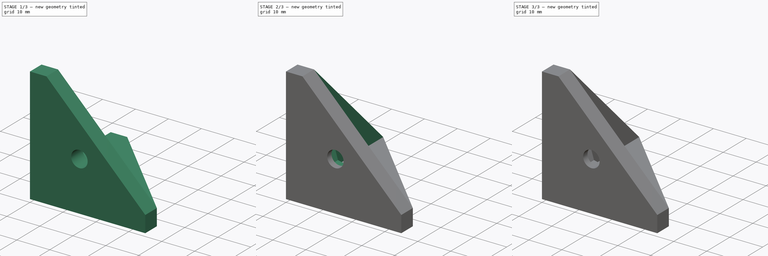
[diagram: build sequence overview — one tinted view per stage of 3, left to right]
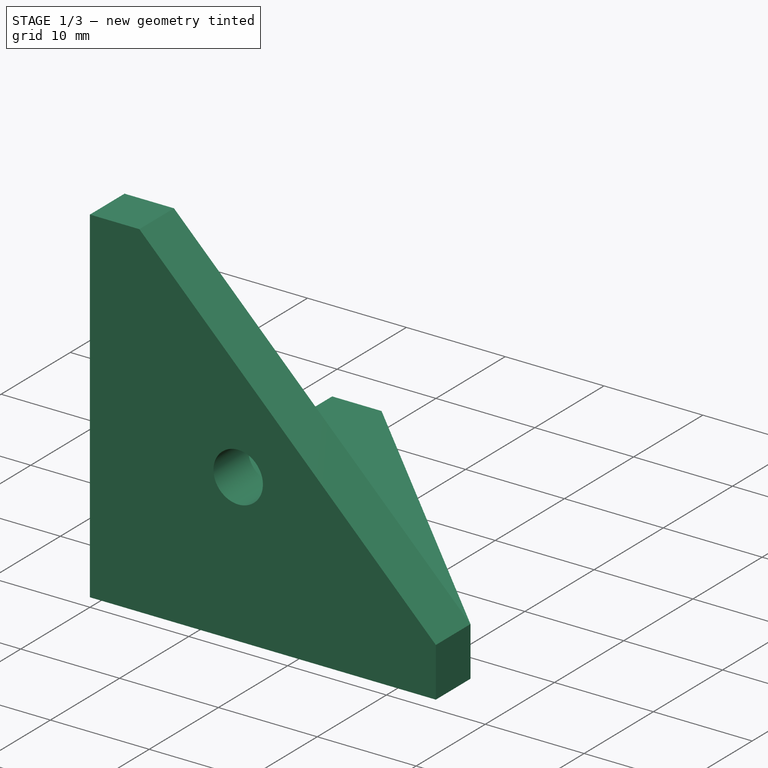
[diagram: stage 1 of 3 — iso view after this stage's code; geometry added in this stage tinted green]
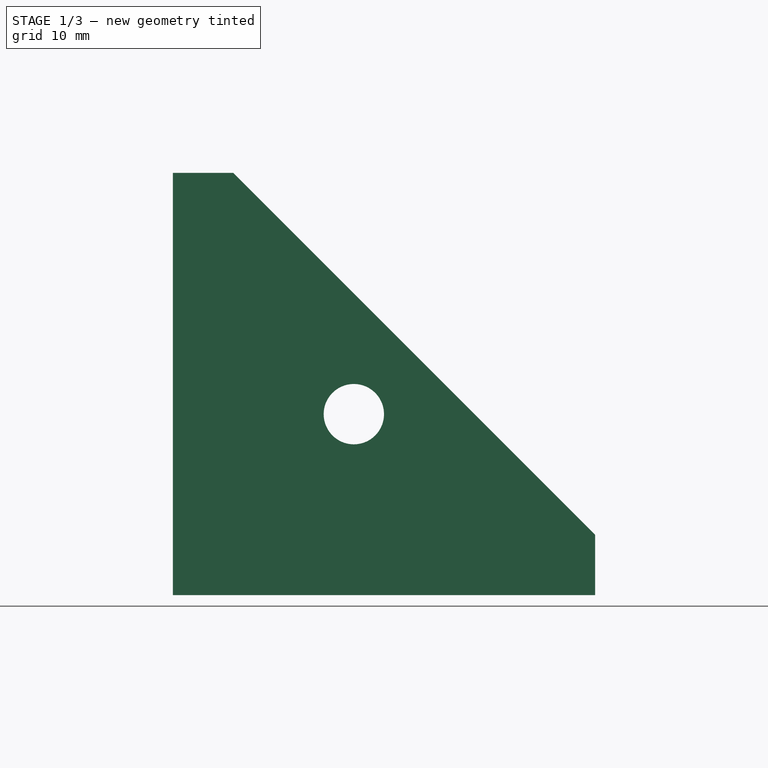
[diagram: stage 1 of 3 — front view after this stage's code; geometry added in this stage tinted green]
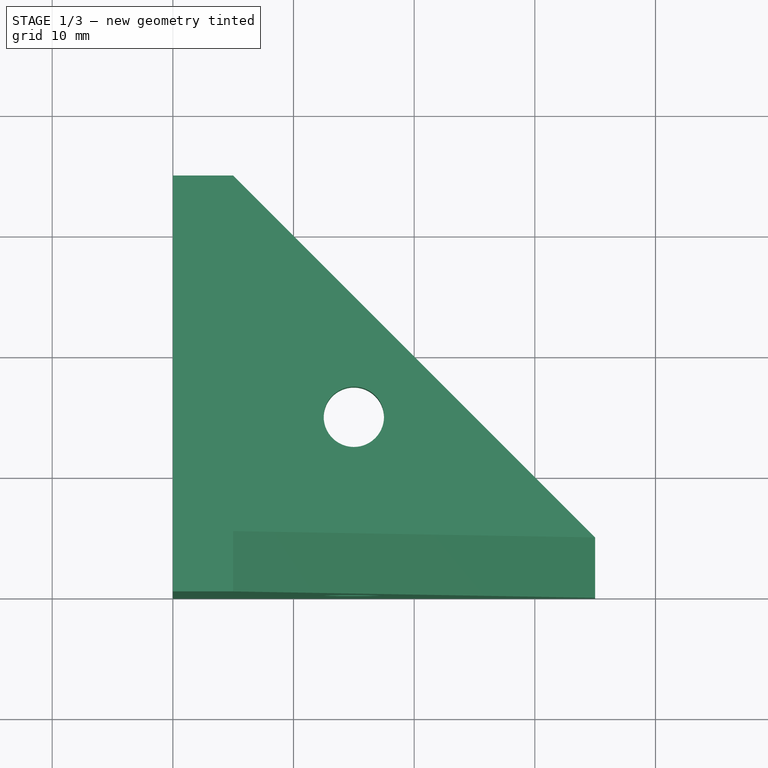
[diagram: stage 1 of 3 — top view after this stage's code; geometry added in this stage tinted green]
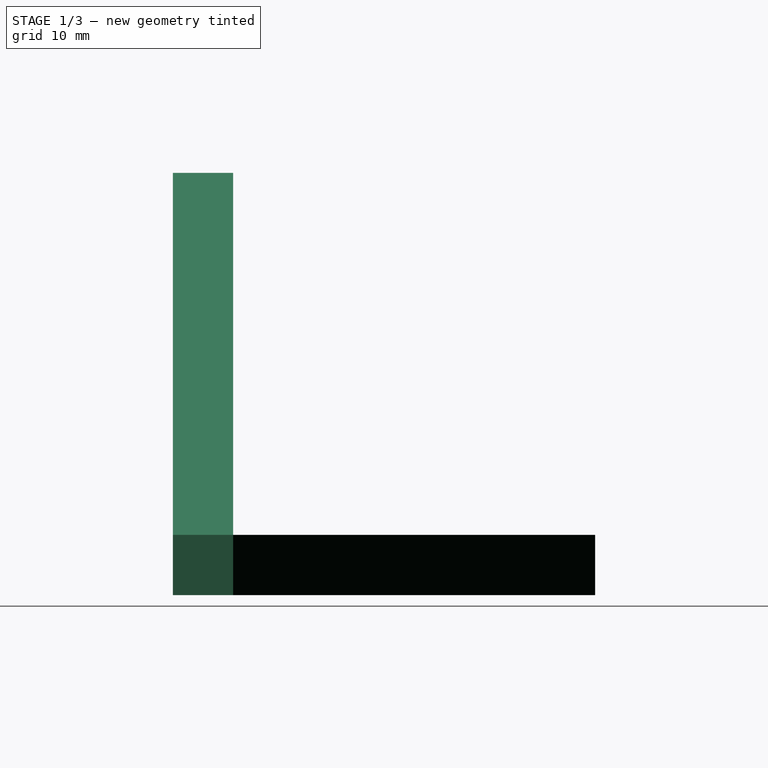
[diagram: stage 1 of 3 — right view after this stage's code; geometry added in this stage tinted green]
FCSTD DOCUMENT  (FreeCAD 0.19R24267 +148 (Git))
Label: Try_Square
License: All rights reserved
LicenseURL: http://en.wikipedia.org/wiki/All_rights_reserved
objects: Sketcher::SketchObject×6, PartDesign::Pad×3, PartDesign::Pocket×3, PartDesign::Body×1
note: 19 computed .brp shape members not serialized (recipe doc carries the construction recipe); baked Part::Feature solids carry a one-line shape summary decoded from their .brp

FEATURE [Sketcher::SketchObject] Sketch
  FullyConstrained = true
  MapMode = 5
  Support = -> [XY_Plane]
  sketch-geometry (6):
    g0: LineSegment StartX=0 StartY=0 StartZ=0 EndX=0 EndY=35 EndZ=0
    g1: LineSegment StartX=0 StartY=35 StartZ=0 EndX=5 EndY=35 EndZ=0
    g2: LineSegment StartX=5 StartY=35 StartZ=0 EndX=35 EndY=5 EndZ=0
    g3: LineSegment StartX=35 StartY=5 StartZ=0 EndX=35 EndY=0 EndZ=0
    g4: LineSegment StartX=35 StartY=0 StartZ=0 EndX=0 EndY=0 EndZ=0
    g5: Circle CenterX=15 CenterY=15 CenterZ=0 NormalX=0 NormalY=0 NormalZ=1 AngleXU=0 Radius=2.5
  constraints (17):
    c: Coincident(g-1,g0)
    c: PointOnObject(g0,g-2)
    c: Coincident(g0,g1)
    c: Horizontal(g1)
    c: Coincident(g1,g2)
    c: Coincident(g2,g3)
    c: PointOnObject(g3,g-1)
    c: Vertical(g3)
    c: Coincident(g3,g4)
    c: Coincident(g4,g0)
    c: Equal(g4,g0)
    c: Equal(g3,g1)
    c: Distance(g0) = 35
    c: DistanceX(g1,g1) = 5
    c: Diameter(g5) = 5
    c: DistanceY(g0,g5) = 15
    c: DistanceX(g0,g5) = 15
FEATURE [PartDesign::Pad] Pad  label="BottomBody"
  Direction = (1,1,1)
  Length = 5
  Length2 = 100
  Profile = -> Sketch
  Refine = true
  Type = 0
FEATURE [Sketcher::SketchObject] Sketch001
  FullyConstrained = true
  MapMode = 5
  Placement = pos=(0,0,0) rot=(1,0,0;1.5708rad)
  Support = -> [XZ_Plane]
  sketch-geometry (6):
    g0: LineSegment StartX=0 StartY=0 StartZ=0 EndX=0 EndY=35 EndZ=0
    g1: LineSegment StartX=0 StartY=35 StartZ=0 EndX=5 EndY=35 EndZ=0
    g2: LineSegment StartX=5 StartY=35 StartZ=0 EndX=35 EndY=5 EndZ=0
    g3: LineSegment StartX=35 StartY=5 StartZ=0 EndX=35 EndY=0 EndZ=0
    g4: LineSegment StartX=35 StartY=0 StartZ=0 EndX=0 EndY=0 EndZ=0
    g5: Circle CenterX=15 CenterY=15 CenterZ=0 NormalX=0 NormalY=0 NormalZ=1 AngleXU=0 Radius=2.5
  constraints (17):
    c: Coincident(g-1,g0)
    c: PointOnObject(g0,g-2)
    c: Coincident(g0,g1)
    c: Horizontal(g1)
    c: Coincident(g1,g2)
    c: Coincident(g2,g3)
    c: PointOnObject(g3,g-1)
    c: Vertical(g3)
    c: Coincident(g3,g4)
    c: Coincident(g4,g0)
    c: Equal(g0,g4)
    c: Equal(g1,g3)
    c: Distance(g4) = 35
    c: Distance(g3) = 5
    c: DistanceY(g0,g5) = 15
    c: DistanceX(g0,g5) = 15
    c: Diameter(g5) = 5
FEATURE [PartDesign::Pad] Pad001  label="LeftBody"
  BaseFeature = -> Pad
  Direction = (1,1,1)
  Length = 5
  Length2 = 100
  Profile = -> Sketch001
  Refine = true
  Reversed = true
  Type = 0
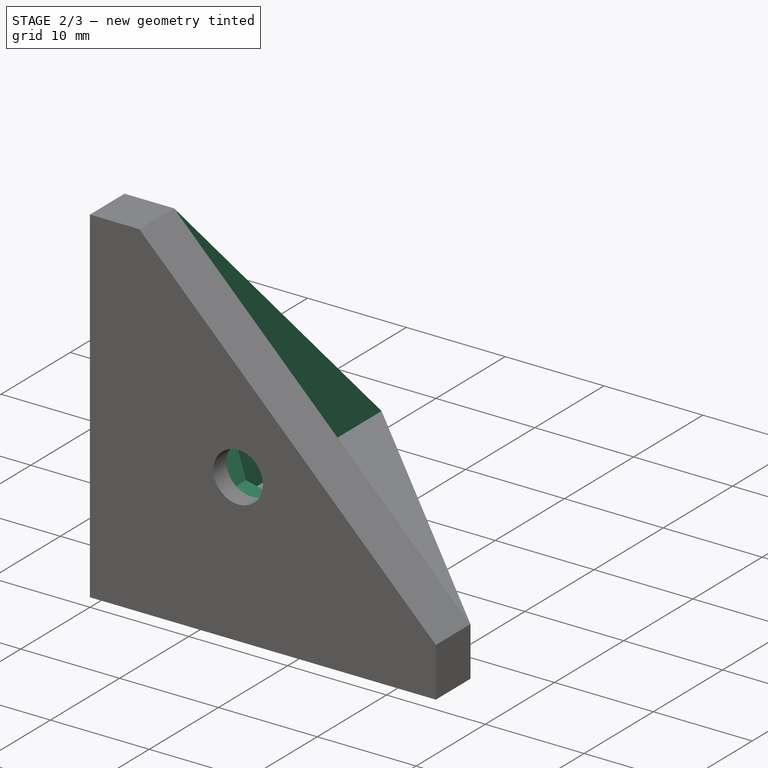
[diagram: stage 2 of 3 — iso view after this stage's code; geometry added in this stage tinted green]
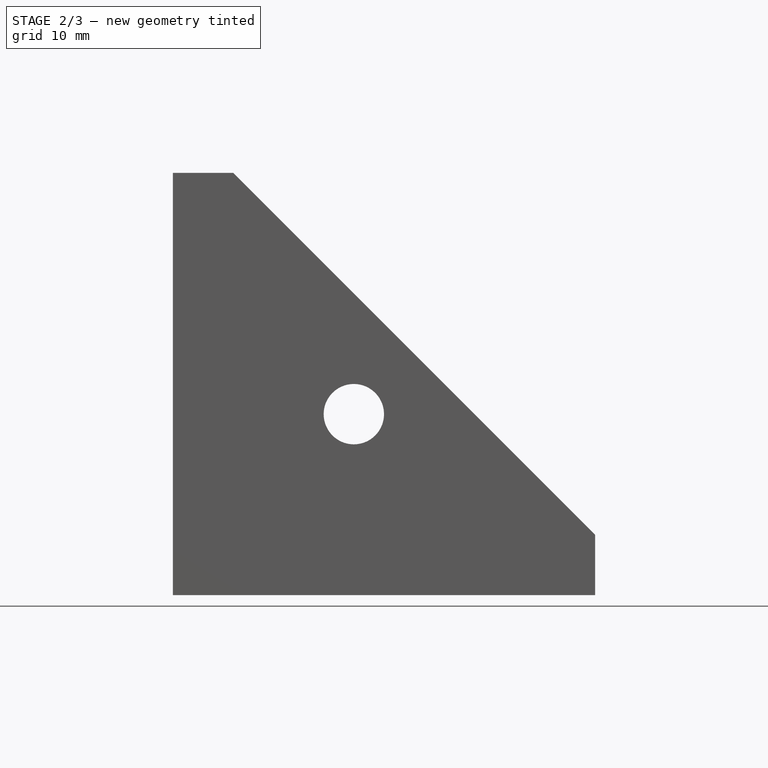
[diagram: stage 2 of 3 — front view after this stage's code; geometry added in this stage tinted green]
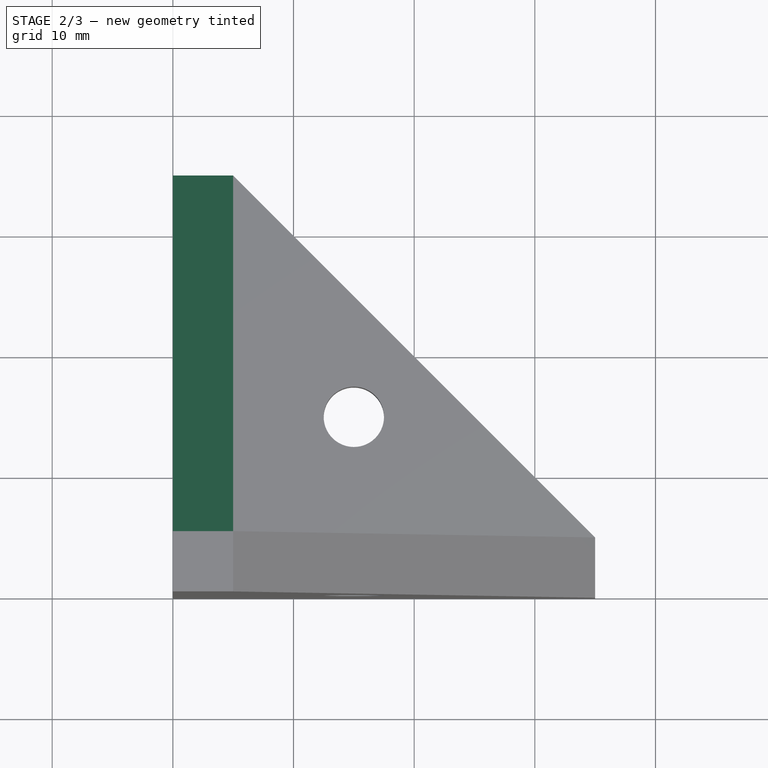
[diagram: stage 2 of 3 — top view after this stage's code; geometry added in this stage tinted green]
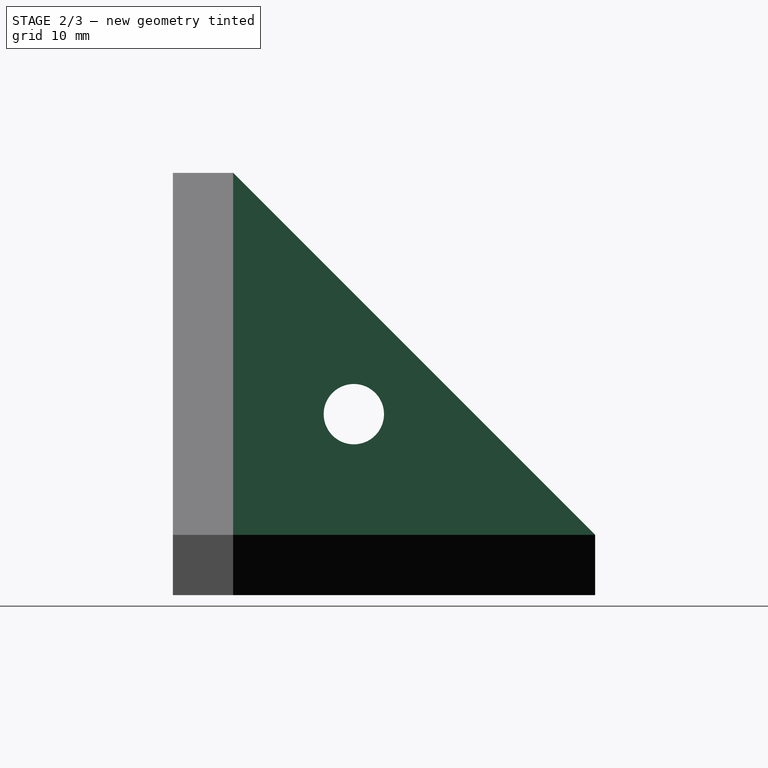
[diagram: stage 2 of 3 — right view after this stage's code; geometry added in this stage tinted green]
FEATURE [Sketcher::SketchObject] Sketch002
  FullyConstrained = true
  MapMode = 5
  Placement = pos=(0,0,0) rot=(0.57735,0.57735,0.57735;2.0944rad)
  Support = -> [YZ_Plane]
  sketch-geometry (6):
    g0: LineSegment StartX=0 StartY=0 StartZ=0 EndX=0 EndY=35 EndZ=0
    g1: LineSegment StartX=0 StartY=35 StartZ=0 EndX=5 EndY=35 EndZ=0
    g2: LineSegment StartX=5 StartY=35 StartZ=0 EndX=35 EndY=5 EndZ=0
    g3: LineSegment StartX=35 StartY=5 StartZ=0 EndX=35 EndY=0 EndZ=0
    g4: LineSegment StartX=35 StartY=0 StartZ=0 EndX=0 EndY=0 EndZ=0
    g5: Circle CenterX=15 CenterY=15 CenterZ=0 NormalX=0 NormalY=0 NormalZ=1 AngleXU=0 Radius=2.5
  constraints (17):
    c: Coincident(g-1,g0)
    c: PointOnObject(g0,g-2)
    c: Coincident(g0,g1)
    c: Horizontal(g1)
    c: Coincident(g1,g2)
    c: Coincident(g2,g3)
    c: PointOnObject(g3,g-1)
    c: Vertical(g3)
    c: Coincident(g3,g4)
    c: Coincident(g4,g0)
    c: Equal(g4,g0)
    c: Equal(g3,g1)
    c: Distance(g4) = 35
    c: Distance(g3) = 5
    c: Diameter(g5) = 5
    c: DistanceY(g0,g5) = 15
    c: DistanceX(g0,g5) = 15
FEATURE [PartDesign::Pad] Pad002  label="FrontBody"
  BaseFeature = -> Pad001
  Direction = (1,1,1)
  Length = 5
  Length2 = 100
  Profile = -> Sketch002
  Refine = true
  Type = 0
FEATURE [Sketcher::SketchObject] Sketch003
  ExternalGeometry = -> [Pad002]
  FullyConstrained = false
  MapMode = 5
  Placement = pos=(0,5,-1.1e-15) rot=(0,0.707107,0.707107;3.14159rad)
  Support = -> [Pad002]
  sketch-geometry (8):
    g0: LineSegment StartX=-13.8284 StartY=18.8075 StartZ=0 EndX=-17.7116 EndY=17.9184 EndZ=0
    g1: LineSegment StartX=-17.7116 StartY=17.9184 StartZ=0 EndX=-18.8832 EndY=14.1109 EndZ=0
    g2: LineSegment StartX=-18.8832 StartY=14.1109 StartZ=0 EndX=-16.1716 EndY=11.1925 EndZ=0
    g3: LineSegment StartX=-16.1716 StartY=11.1925 StartZ=0 EndX=-12.2884 EndY=12.0816 EndZ=0
    g4: LineSegment StartX=-12.2884 StartY=12.0816 StartZ=0 EndX=-11.1168 EndY=15.8891 EndZ=0
    g5: LineSegment StartX=-11.1168 StartY=15.8891 StartZ=0 EndX=-13.8284 EndY=18.8075 EndZ=0
    g6: Circle CenterX=-15 CenterY=15 CenterZ=0 NormalX=0 NormalY=0 NormalZ=1 AngleXU=0 Radius=3.98372
    g7: LineSegment StartX=-17.7116 StartY=17.9184 StartZ=0 EndX=-12.2884 EndY=12.0816 EndZ=0
  constraints (17):
    c: Coincident(g0,g1)
    c: Coincident(g1,g2)
    c: Coincident(g2,g3)
    c: Coincident(g3,g4)
    c: Coincident(g4,g5)
    c: Coincident(g5,g0)
    c: Equal(g0, g1-g5) x5
    c: PointOnObject(g0,g6)
    c: PointOnObject(g1,g6)
    c: PointOnObject(g2,g6)
    c: PointOnObject(g3,g6)
    c: PointOnObject(g4,g6)
    c: PointOnObject(g5,g6)
    c: Coincident(g6,g-3)
    c: Coincident(g7,g0)
    c: Coincident(g7,g3)
    c: Distance(g4,g2) = 6.9
FEATURE [PartDesign::Pocket] Pocket  label="PocketForFront_Nuts"
  BaseFeature = -> Pad002
  Length = 3.1
  Length2 = 100
  Profile = -> Sketch003
  Refine = true
  Type = 0
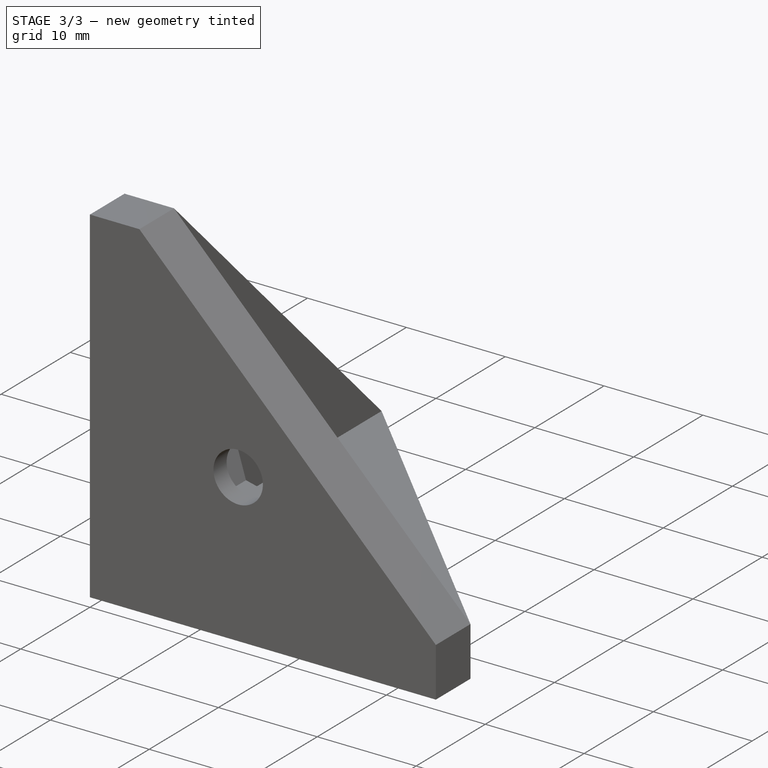
[diagram: stage 3 of 3 — iso view after this stage's code; geometry added in this stage tinted green]
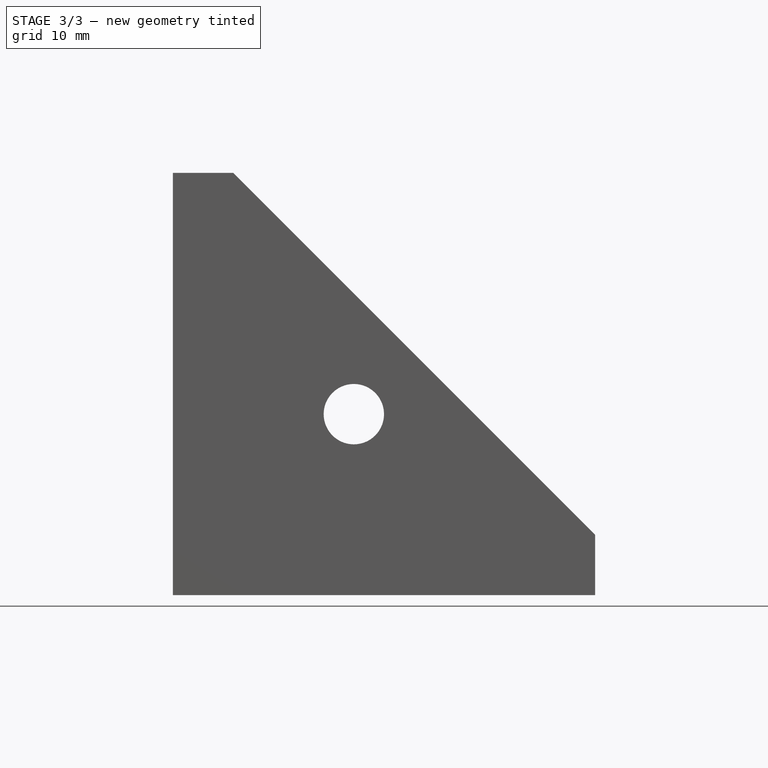
[diagram: stage 3 of 3 — front view after this stage's code; geometry added in this stage tinted green]
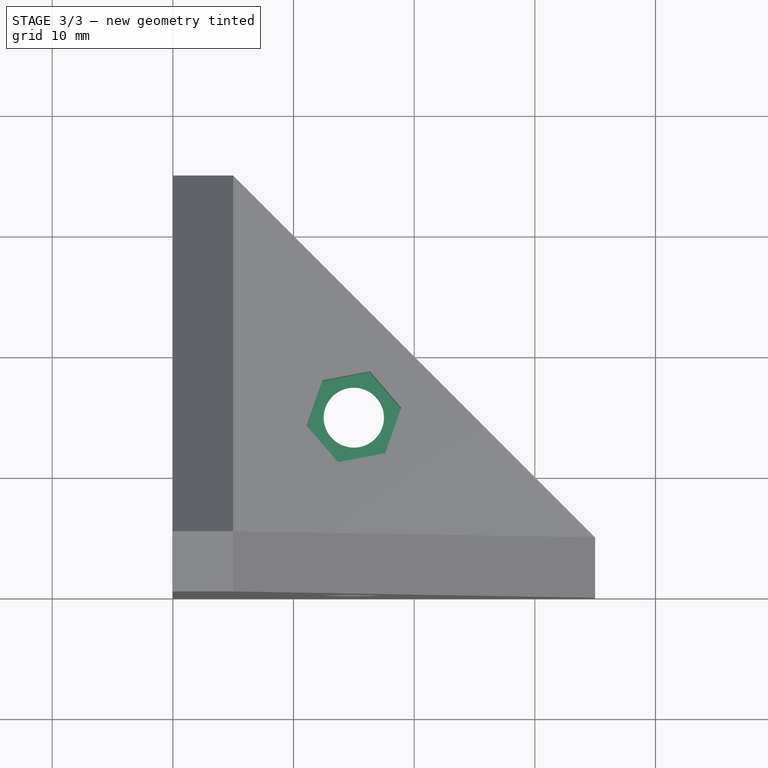
[diagram: stage 3 of 3 — top view after this stage's code; geometry added in this stage tinted green]
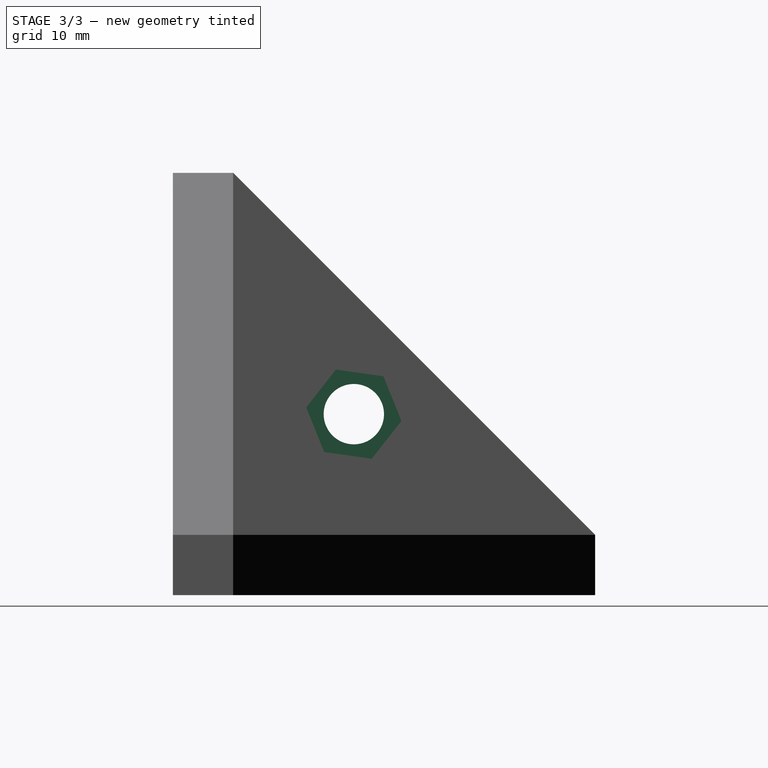
[diagram: stage 3 of 3 — right view after this stage's code; geometry added in this stage tinted green]
FEATURE [Sketcher::SketchObject] Sketch004
  ExternalGeometry = -> [Pocket]
  FullyConstrained = false
  MapMode = 5
  Placement = pos=(0,0,5) rot=(0,0,1;0rad)
  Support = -> [Pocket]
  sketch-geometry (7):
    g0: LineSegment StartX=16.3213 StartY=18.7582 StartZ=0 EndX=12.4059 EndY=18.0234 EndZ=0
    g1: LineSegment StartX=12.4059 StartY=18.0234 StartZ=0 EndX=11.0846 EndY=14.2652 EndZ=0
    g2: LineSegment StartX=11.0846 StartY=14.2652 StartZ=0 EndX=13.6787 EndY=11.2418 EndZ=0
    g3: LineSegment StartX=13.6787 StartY=11.2418 StartZ=0 EndX=17.5941 EndY=11.9766 EndZ=0
    g4: LineSegment StartX=17.5941 StartY=11.9766 StartZ=0 EndX=18.9154 EndY=15.7348 EndZ=0
    g5: LineSegment StartX=18.9154 StartY=15.7348 StartZ=0 EndX=16.3213 EndY=18.7582 EndZ=0
    g6: Circle CenterX=15 CenterY=15 CenterZ=0 NormalX=0 NormalY=0 NormalZ=1 AngleXU=0 Radius=3.98372
  constraints (15):
    c: Coincident(g0,g1)
    c: Coincident(g1,g2)
    c: Coincident(g2,g3)
    c: Coincident(g3,g4)
    c: Coincident(g4,g5)
    c: Coincident(g5,g0)
    c: Equal(g0, g1-g5) x5
    c: PointOnObject(g0,g6)
    c: PointOnObject(g1,g6)
    c: PointOnObject(g2,g6)
    c: PointOnObject(g3,g6)
    c: PointOnObject(g4,g6)
    c: PointOnObject(g5,g6)
    c: Coincident(g6,g-3)
    c: Distance(g4,g2) = 6.9
FEATURE [PartDesign::Pocket] Pocket001  label="PocketForBottom_Nuts"
  BaseFeature = -> Pocket
  Length = 3.1
  Length2 = 100
  Profile = -> Sketch004
  Refine = true
  Type = 0
FEATURE [Sketcher::SketchObject] Sketch005
  ExternalGeometry = -> [Pocket001]
  FullyConstrained = false
  MapMode = 5
  Placement = pos=(5,-1.1e-15,1.1e-15) rot=(0.57735,0.57735,0.57735;2.0944rad)
  Support = -> [Pocket001]
  sketch-geometry (7):
    g0: LineSegment StartX=18.9445 StartY=14.4421 StartZ=0 EndX=17.4554 EndY=18.137 EndZ=0
    g1: LineSegment StartX=17.4554 StartY=18.137 StartZ=0 EndX=13.511 EndY=18.695 EndZ=0
    g2: LineSegment StartX=13.511 StartY=18.695 StartZ=0 EndX=11.0555 EndY=15.5579 EndZ=0
    g3: LineSegment StartX=11.0555 StartY=15.5579 StartZ=0 EndX=12.5446 EndY=11.863 EndZ=0
    g4: LineSegment StartX=12.5446 StartY=11.863 StartZ=0 EndX=16.489 EndY=11.305 EndZ=0
    g5: LineSegment StartX=16.489 StartY=11.305 StartZ=0 EndX=18.9445 EndY=14.4421 EndZ=0
    g6: Circle CenterX=15 CenterY=15 CenterZ=0 NormalX=0 NormalY=0 NormalZ=1 AngleXU=0 Radius=3.98372
  constraints (15):
    c: Coincident(g0,g1)
    c: Coincident(g1,g2)
    c: Coincident(g2,g3)
    c: Coincident(g3,g4)
    c: Coincident(g4,g5)
    c: Coincident(g5,g0)
    c: Equal(g0, g1-g5) x5
    c: PointOnObject(g0,g6)
    c: PointOnObject(g1,g6)
    c: PointOnObject(g2,g6)
    c: PointOnObject(g3,g6)
    c: PointOnObject(g4,g6)
    c: PointOnObject(g5,g6)
    c: Coincident(g6,g-3)
    c: Distance(g4,g2) = 6.9
FEATURE [PartDesign::Pocket] Pocket002  label="PocketForLeft_Nuts"
  BaseFeature = -> Pocket001
  Length = 3.1
  Length2 = 100
  Profile = -> Sketch005
  Refine = true
  Type = 0
FEATURE [PartDesign::Body] Body
  Group = -> [Sketch,Pad,Sketch001,Pad001,Sketch002,Pad002,Sketch003,Pocket,Sketch004,Pocket001,Sketch005,Pocket002]
  Origin = -> Origin
  Tip = -> Pocket002
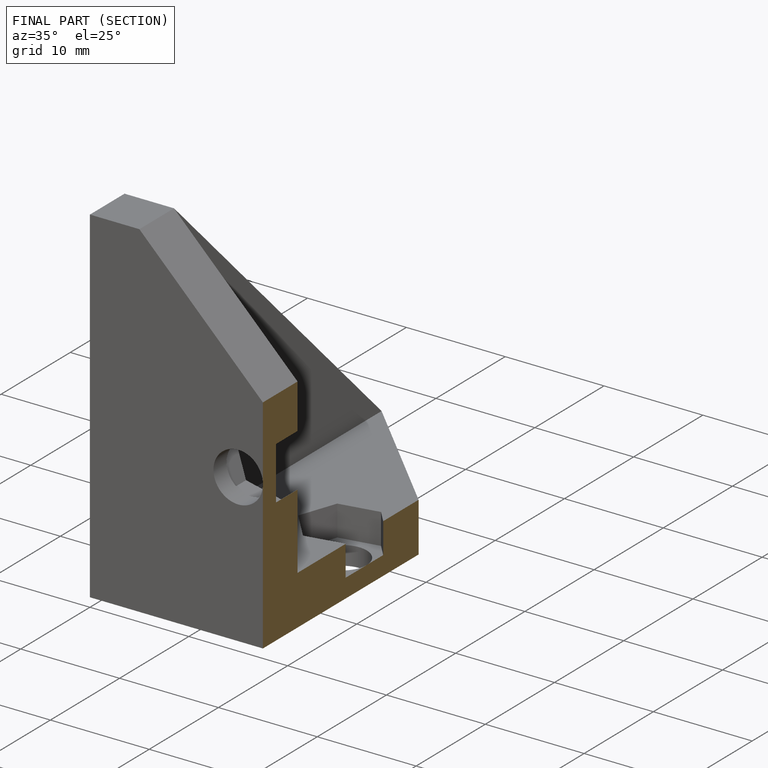
[diagram: finished part — half-section view (interior)]
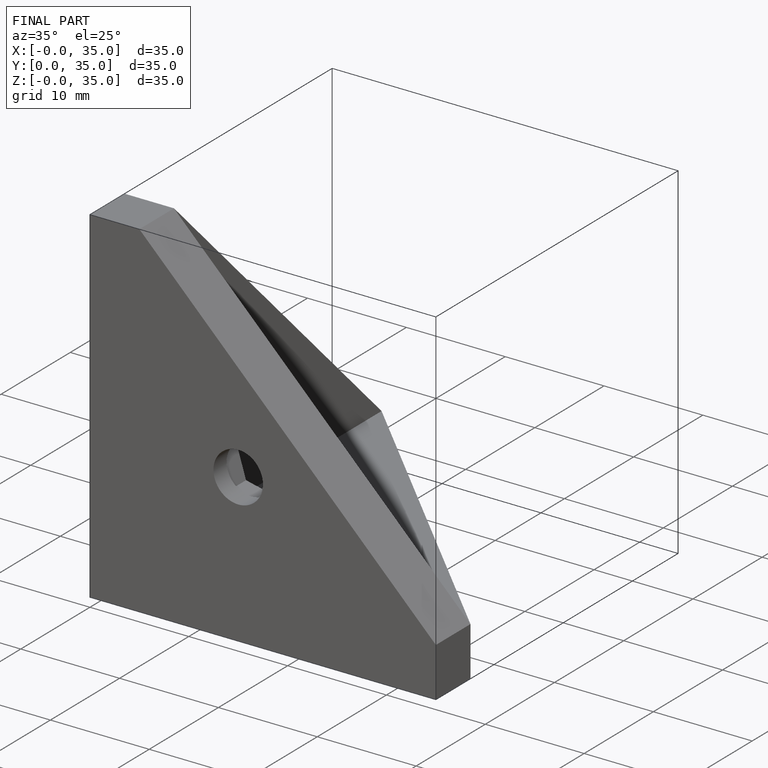
[diagram: finished part — iso view with bounding-box wireframe]
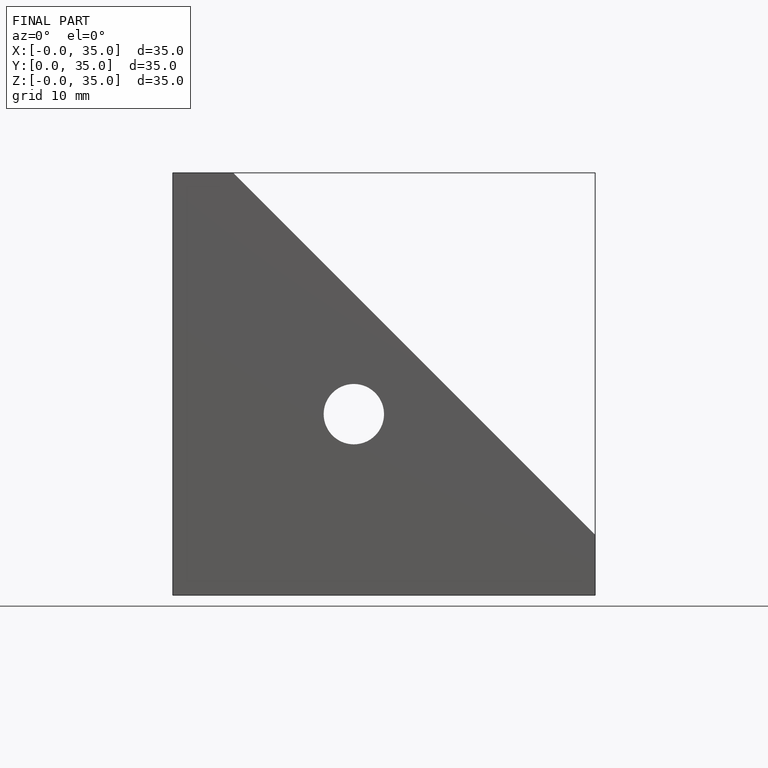
[diagram: finished part — front view with bounding-box wireframe]
